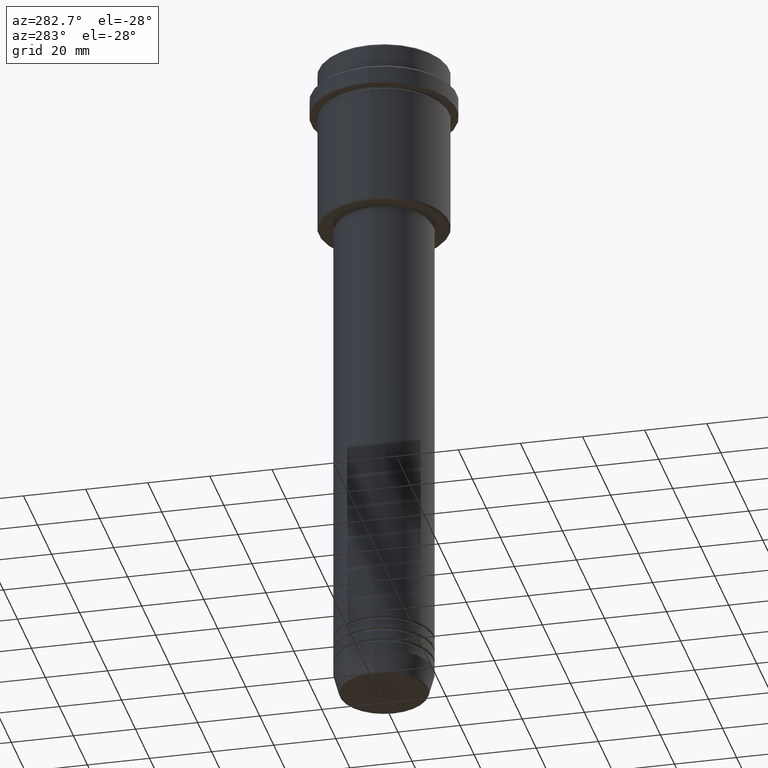
[diagram: clean part render]
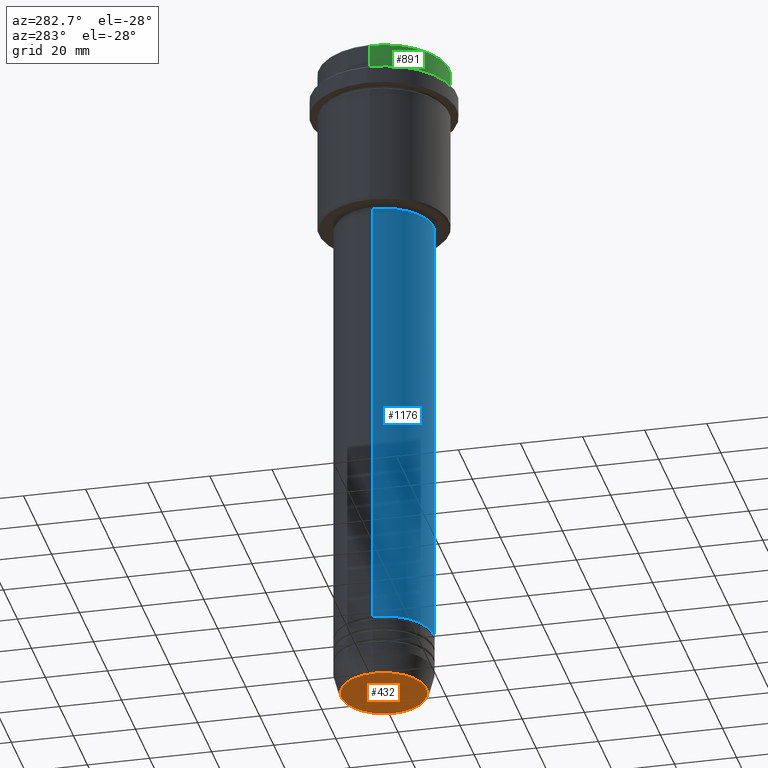
[diagram: same view with three faces highlighted in distinct colors, each labeled with its STEP entity id]
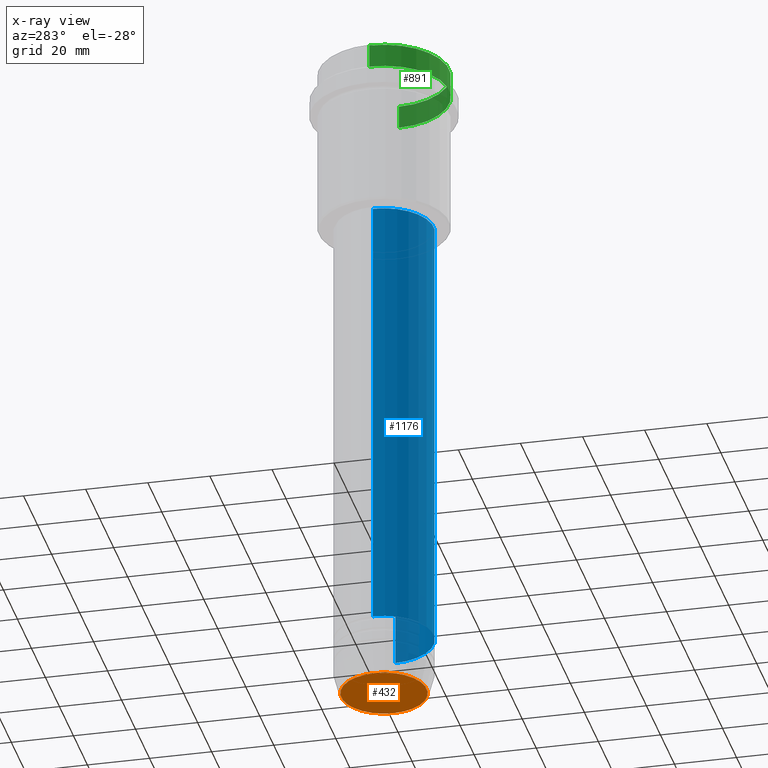
[diagram: x-ray of the same camera — body ghosted, the three highlighted faces saturated]
A machine part, auxiliary view with three faces highlighted in distinct colors.
The next image is the same camera in x-ray (body ghosted, the three faces saturated) — at least one of them is partly hidden behind the body in this view.
Their STEP definitions:

[orange] entity #432 — the highlighted planar face has unit normal (0, -0, 1).
#185 = VERTEX_POINT ( 'NONE', #700 ) ;
#285 = EDGE_CURVE ( 'NONE', #1167, #185, #927, .T. ) ;
#294 = AXIS2_PLACEMENT_3D ( 'NONE', #563, #996, #969 ) ;
#332 = PLANE ( 'NONE',  #1139 ) ;
#354 = EDGE_LOOP ( 'NONE', ( #478, #983 ) ) ;
#425 = DIRECTION ( 'NONE',  ( 0.000000000000000000, -0.000000000000000000, 1.000000000000000000 ) ) ;
#427 = CARTESIAN_POINT ( 'NONE',  ( 13.74069215899265828, 0.000000000000000000, -220.0000000000000284 ) ) ;
#432 = ADVANCED_FACE ( 'NONE', ( #852 ), #332, .F. ) ;
#452 = DIRECTION ( 'NONE',  ( 1.000000000000000000, 0.000000000000000000, 0.000000000000000000 ) ) ;
#478 = ORIENTED_EDGE ( 'NONE', *, *, #285, .T. ) ;
#493 = EDGE_CURVE ( 'NONE', #185, #1167, #812, .T. ) ;
#563 = CARTESIAN_POINT ( 'NONE',  ( 0.000000000000000000, 0.000000000000000000, -220.0000000000000284 ) ) ;
#647 = CARTESIAN_POINT ( 'NONE',  ( 0.000000000000000000, 0.000000000000000000, -220.0000000000000284 ) ) ;
#700 = CARTESIAN_POINT ( 'NONE',  ( -13.74069215899265828, 1.712322416342415986E-15, -220.0000000000000284 ) ) ;
#731 = DIRECTION ( 'NONE',  ( 0.000000000000000000, 0.000000000000000000, -1.000000000000000000 ) ) ;
#812 = CIRCLE ( 'NONE', #294, 13.74069215899265828 ) ;
#830 = CARTESIAN_POINT ( 'NONE',  ( 0.000000000000000000, 0.000000000000000000, -220.0000000000000284 ) ) ;
#852 = FACE_OUTER_BOUND ( 'NONE', #354, .T. ) ;
#927 = CIRCLE ( 'NONE', #1209, 13.74069215899265828 ) ;
#969 = DIRECTION ( 'NONE',  ( 1.000000000000000000, 0.000000000000000000, 0.000000000000000000 ) ) ;
#983 = ORIENTED_EDGE ( 'NONE', *, *, #493, .T. ) ;
#996 = DIRECTION ( 'NONE',  ( 0.000000000000000000, 0.000000000000000000, -1.000000000000000000 ) ) ;
#1139 = AXIS2_PLACEMENT_3D ( 'NONE', #647, #425, #452 ) ;
#1167 = VERTEX_POINT ( 'NONE', #427 ) ;
#1209 = AXIS2_PLACEMENT_3D ( 'NONE', #830, #731, #1387 ) ;
#1387 = DIRECTION ( 'NONE',  ( 1.000000000000000000, 0.000000000000000000, 0.000000000000000000 ) ) ;

[blue] entity #1176 — the highlighted cylindrical surface (partial cylindrical patch) has radius 16 mm, axis along (-0, -0, 1).
#22 = CIRCLE ( 'NONE', #203, 16.00000000000000000 ) ;
#31 = DIRECTION ( 'NONE',  ( -0.000000000000000000, -0.000000000000000000, 1.000000000000000000 ) ) ;
#43 = VECTOR ( 'NONE', #1191, 1000.000000000000000 ) ;
#107 = DIRECTION ( 'NONE',  ( -0.000000000000000000, -0.000000000000000000, 1.000000000000000000 ) ) ;
#118 = ORIENTED_EDGE ( 'NONE', *, *, #473, .T. ) ;
#144 = LINE ( 'NONE', #462, #296 ) ;
#148 = ORIENTED_EDGE ( 'NONE', *, *, #628, .T. ) ;
#190 = DIRECTION ( 'NONE',  ( 1.000000000000000000, 0.000000000000000000, 0.000000000000000000 ) ) ;
#202 = CARTESIAN_POINT ( 'NONE',  ( 0.000000000000000000, 0.000000000000000000, 0.000000000000000000 ) ) ;
#203 = AXIS2_PLACEMENT_3D ( 'NONE', #211, #107, #671 ) ;
#211 = CARTESIAN_POINT ( 'NONE',  ( 0.000000000000000000, 0.000000000000000000, -200.9999999999999147 ) ) ;
#229 = AXIS2_PLACEMENT_3D ( 'NONE', #843, #1055, #1407 ) ;
#260 = ORIENTED_EDGE ( 'NONE', *, *, #424, .F. ) ;
#296 = VECTOR ( 'NONE', #31, 1000.000000000000000 ) ;
#338 = CARTESIAN_POINT ( 'NONE',  ( -16.00000000000000000, 1.959434878635765131E-15, 0.000000000000000000 ) ) ;
#421 = CYLINDRICAL_SURFACE ( 'NONE', #1394, 16.00000000000000000 ) ;
#424 = EDGE_CURVE ( 'NONE', #1331, #1144, #985, .T. ) ;
#462 = CARTESIAN_POINT ( 'NONE',  ( 16.00000000000000000, 0.000000000000000000, 0.000000000000000000 ) ) ;
#469 = ORIENTED_EDGE ( 'NONE', *, *, #1136, .F. ) ;
#473 = EDGE_CURVE ( 'NONE', #1331, #798, #22, .T. ) ;
#486 = CARTESIAN_POINT ( 'NONE',  ( 16.00000000000000355, 0.000000000000000000, -56.00000000000002132 ) ) ;
#532 = CARTESIAN_POINT ( 'NONE',  ( 16.00000000000000000, 0.000000000000000000, -200.9999999999999147 ) ) ;
#628 = EDGE_CURVE ( 'NONE', #798, #1047, #144, .T. ) ;
#630 = CARTESIAN_POINT ( 'NONE',  ( -16.00000000000000355, 1.959434878635765526E-15, -56.00000000000002132 ) ) ;
#671 = DIRECTION ( 'NONE',  ( 1.000000000000000000, 0.000000000000000000, 0.000000000000000000 ) ) ;
#798 = VERTEX_POINT ( 'NONE', #532 ) ;
#843 = CARTESIAN_POINT ( 'NONE',  ( 0.000000000000000000, 0.000000000000000000, -56.00000000000002132 ) ) ;
#848 = DIRECTION ( 'NONE',  ( -0.000000000000000000, -0.000000000000000000, 1.000000000000000000 ) ) ;
#985 = LINE ( 'NONE', #338, #43 ) ;
#1020 = EDGE_LOOP ( 'NONE', ( #260, #118, #148, #469 ) ) ;
#1034 = CARTESIAN_POINT ( 'NONE',  ( -16.00000000000000000, 1.959434878635765131E-15, -200.9999999999999147 ) ) ;
#1047 = VERTEX_POINT ( 'NONE', #486 ) ;
#1055 = DIRECTION ( 'NONE',  ( -0.000000000000000000, -0.000000000000000000, 1.000000000000000000 ) ) ;
#1072 = CIRCLE ( 'NONE', #229, 16.00000000000000355 ) ;
#1136 = EDGE_CURVE ( 'NONE', #1144, #1047, #1072, .T. ) ;
#1144 = VERTEX_POINT ( 'NONE', #630 ) ;
#1176 = ADVANCED_FACE ( 'NONE', ( #1399 ), #421, .T. ) ;
#1191 = DIRECTION ( 'NONE',  ( -0.000000000000000000, -0.000000000000000000, 1.000000000000000000 ) ) ;
#1331 = VERTEX_POINT ( 'NONE', #1034 ) ;
#1394 = AXIS2_PLACEMENT_3D ( 'NONE', #202, #848, #190 ) ;
#1399 = FACE_OUTER_BOUND ( 'NONE', #1020, .T. ) ;
#1407 = DIRECTION ( 'NONE',  ( 1.000000000000000000, 0.000000000000000000, 0.000000000000000000 ) ) ;

[green] entity #891 — the highlighted cylindrical surface (partial cylindrical patch) has radius 21 mm, axis along (-0, -0, 1).
#52 = DIRECTION ( 'NONE',  ( 1.000000000000000000, 0.000000000000000000, 0.000000000000000000 ) ) ;
#91 = ORIENTED_EDGE ( 'NONE', *, *, #684, .F. ) ;
#153 = ORIENTED_EDGE ( 'NONE', *, *, #1286, .T. ) ;
#232 = EDGE_CURVE ( 'NONE', #1352, #809, #382, .T. ) ;
#381 = DIRECTION ( 'NONE',  ( 0.000000000000000000, 0.000000000000000000, -1.000000000000000000 ) ) ;
#382 = LINE ( 'NONE', #808, #858 ) ;
#465 = CYLINDRICAL_SURFACE ( 'NONE', #685, 21.00000000000000000 ) ;
#542 = CARTESIAN_POINT ( 'NONE',  ( -21.00000000000000000, 2.571758278209441661E-15, 0.000000000000000000 ) ) ;
#552 = DIRECTION ( 'NONE',  ( 1.000000000000000000, 0.000000000000000000, 0.000000000000000000 ) ) ;
#572 = CIRCLE ( 'NONE', #1145, 21.00000000000000000 ) ;
#573 = CARTESIAN_POINT ( 'NONE',  ( -21.00000000000000000, 2.571758278209441661E-15, -0.5000000000000108802 ) ) ;
#585 = CARTESIAN_POINT ( 'NONE',  ( 21.00000000000000000, 0.000000000000000000, -7.999999999999998224 ) ) ;
#669 = VERTEX_POINT ( 'NONE', #573 ) ;
#681 = CARTESIAN_POINT ( 'NONE',  ( 0.000000000000000000, 0.000000000000000000, 0.000000000000000000 ) ) ;
#684 = EDGE_CURVE ( 'NONE', #713, #669, #899, .T. ) ;
#685 = AXIS2_PLACEMENT_3D ( 'NONE', #681, #791, #552 ) ;
#713 = VERTEX_POINT ( 'NONE', #1299 ) ;
#791 = DIRECTION ( 'NONE',  ( -0.000000000000000000, -0.000000000000000000, 1.000000000000000000 ) ) ;
#808 = CARTESIAN_POINT ( 'NONE',  ( 21.00000000000000000, 0.000000000000000000, 0.000000000000000000 ) ) ;
#809 = VERTEX_POINT ( 'NONE', #1201 ) ;
#817 = DIRECTION ( 'NONE',  ( -0.000000000000000000, -0.000000000000000000, 1.000000000000000000 ) ) ;
#858 = VECTOR ( 'NONE', #1252, 1000.000000000000000 ) ;
#867 = DIRECTION ( 'NONE',  ( -0.000000000000000000, -0.000000000000000000, 1.000000000000000000 ) ) ;
#891 = ADVANCED_FACE ( 'NONE', ( #1009 ), #465, .T. ) ;
#899 = LINE ( 'NONE', #542, #1117 ) ;
#1004 = AXIS2_PLACEMENT_3D ( 'NONE', #1360, #817, #1374 ) ;
#1009 = FACE_OUTER_BOUND ( 'NONE', #1398, .T. ) ;
#1041 = CARTESIAN_POINT ( 'NONE',  ( 0.000000000000000000, 0.000000000000000000, -0.5000000000000108802 ) ) ;
#1117 = VECTOR ( 'NONE', #867, 1000.000000000000000 ) ;
#1145 = AXIS2_PLACEMENT_3D ( 'NONE', #1041, #381, #52 ) ;
#1192 = CIRCLE ( 'NONE', #1004, 21.00000000000000000 ) ;
#1201 = CARTESIAN_POINT ( 'NONE',  ( 21.00000000000000000, 0.000000000000000000, -0.5000000000000108802 ) ) ;
#1252 = DIRECTION ( 'NONE',  ( -0.000000000000000000, -0.000000000000000000, 1.000000000000000000 ) ) ;
#1276 = ORIENTED_EDGE ( 'NONE', *, *, #1337, .T. ) ;
#1286 = EDGE_CURVE ( 'NONE', #713, #1352, #1192, .T. ) ;
#1291 = ORIENTED_EDGE ( 'NONE', *, *, #232, .T. ) ;
#1299 = CARTESIAN_POINT ( 'NONE',  ( -21.00000000000000000, 2.571758278209441661E-15, -7.999999999999998224 ) ) ;
#1337 = EDGE_CURVE ( 'NONE', #809, #669, #572, .T. ) ;
#1352 = VERTEX_POINT ( 'NONE', #585 ) ;
#1360 = CARTESIAN_POINT ( 'NONE',  ( 0.000000000000000000, 0.000000000000000000, -7.999999999999998224 ) ) ;
#1374 = DIRECTION ( 'NONE',  ( 1.000000000000000000, 0.000000000000000000, 0.000000000000000000 ) ) ;
#1398 = EDGE_LOOP ( 'NONE', ( #91, #153, #1291, #1276 ) ) ;